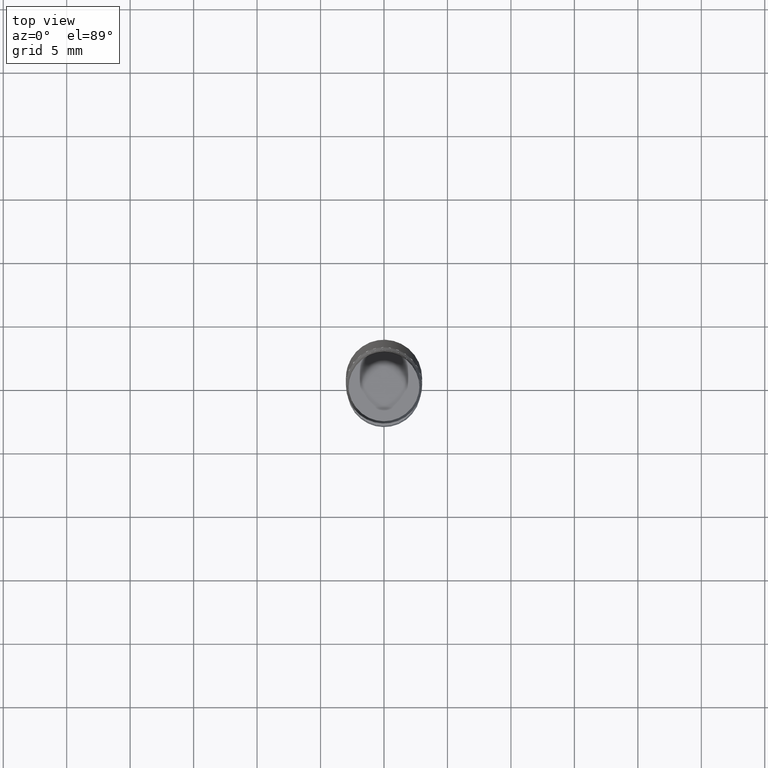
[diagram: clean part render]
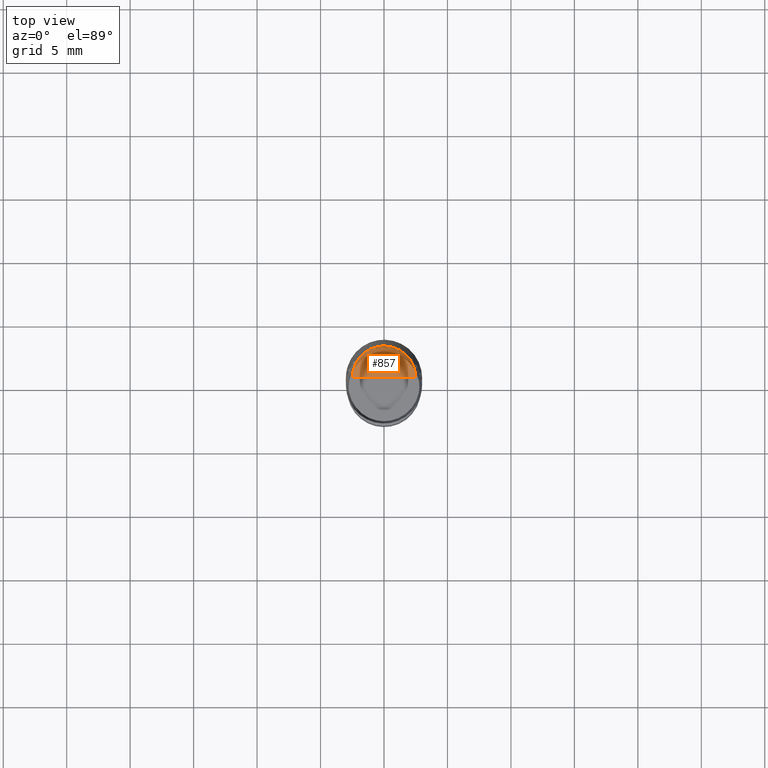
[diagram: same view with one face highlighted and labeled with its STEP entity id]
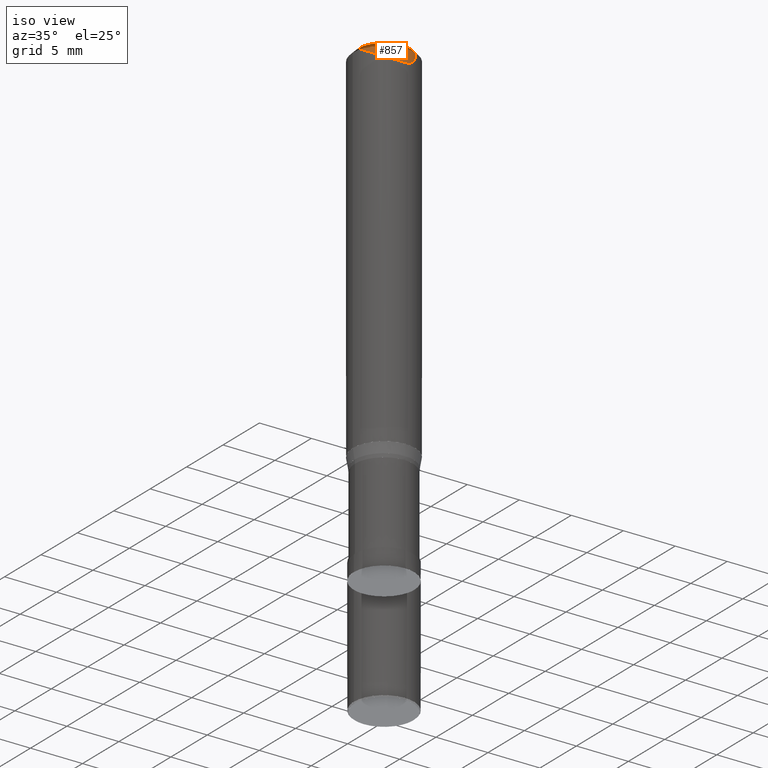
[diagram: same view with one face highlighted and labeled with its STEP entity id]
A machine part, top view. The second image highlights one B-rep face of the part: STEP entity #857.
A second angle (iso view) of the same face is appended — the face is thin or edge-on in the first view.
In plain terms, the highlighted face is a freeform B-spline surface patch.
Its self-contained STEP definition (entity closure, byte-faithful):
#503=CARTESIAN_POINT('',(2.5,0.0,34.86615));
#504=CARTESIAN_POINT('',(2.5,2.5,34.86615));
#505=CARTESIAN_POINT('',(0.0,2.5,34.86615));
#506=CARTESIAN_POINT('',(-2.5,2.5,34.86615));
#507=CARTESIAN_POINT('',(-2.5,0.0,34.86615));
#508=CARTESIAN_POINT('',(0.0,0.0,34.86615));
#842=(
BOUNDED_SURFACE()
B_SPLINE_SURFACE(1,2,(
(#503,#504,#505,#506,#507),
(#508,#508,#508,#508,#508)
), .UNSPECIFIED.,.F.,.F.,.F.)
B_SPLINE_SURFACE_WITH_KNOTS((2,2),(3,2,3),(
0.0,1.0),(
0.0,0.5,1.0), .UNSPECIFIED.)
GEOMETRIC_REPRESENTATION_ITEM()
RATIONAL_B_SPLINE_SURFACE(((1.0,0.707106781187,1.0,0.707106781187,1.0),
(1.0,0.707106781187,1.0,0.707106781187,1.0)
))
REPRESENTATION_ITEM('')
SURFACE()
);
#843=(
BOUNDED_CURVE()
B_SPLINE_CURVE(2,(#507,#506,#505,#504,#503),.UNSPECIFIED.,.F.,.F.)
B_SPLINE_CURVE_WITH_KNOTS((3,2,3),
(0.0,0.5,1.0),.UNSPECIFIED.)
CURVE()
GEOMETRIC_REPRESENTATION_ITEM()
RATIONAL_B_SPLINE_CURVE((1.0,0.707106781187,1.0,0.707106781187,1.0))
REPRESENTATION_ITEM('')
);
#844=(
BOUNDED_CURVE()
B_SPLINE_CURVE(1,(#503,#508),.UNSPECIFIED.,.F.,.F.)
B_SPLINE_CURVE_WITH_KNOTS((2,2),
(0.0,1.0),.UNSPECIFIED.)
CURVE()
GEOMETRIC_REPRESENTATION_ITEM()
RATIONAL_B_SPLINE_CURVE((1.0,1.0))
REPRESENTATION_ITEM('')
);
#845=(
BOUNDED_CURVE()
B_SPLINE_CURVE(1,(#508,#507),.UNSPECIFIED.,.F.,.F.)
B_SPLINE_CURVE_WITH_KNOTS((2,2),
(0.0,1.0),.UNSPECIFIED.)
CURVE()
GEOMETRIC_REPRESENTATION_ITEM()
RATIONAL_B_SPLINE_CURVE((1.0,1.0))
REPRESENTATION_ITEM('')
);
#846=VERTEX_POINT('',#503);
#847=VERTEX_POINT('',#507);
#848=VERTEX_POINT('',#508);
#849=EDGE_CURVE('',#847,#846,#843,.T.);
#850=EDGE_CURVE('',#846,#848,#844,.T.);
#851=EDGE_CURVE('',#848,#847,#845,.T.);
#852=ORIENTED_EDGE('',*,*,#849,.T.);
#853=ORIENTED_EDGE('',*,*,#850,.T.);
#854=ORIENTED_EDGE('',*,*,#851,.T.);
#855=EDGE_LOOP('',(#852,#853,#854));
#856=FACE_OUTER_BOUND('',#855,.T.);
#857=ADVANCED_FACE('',(#856),#842,.T.);